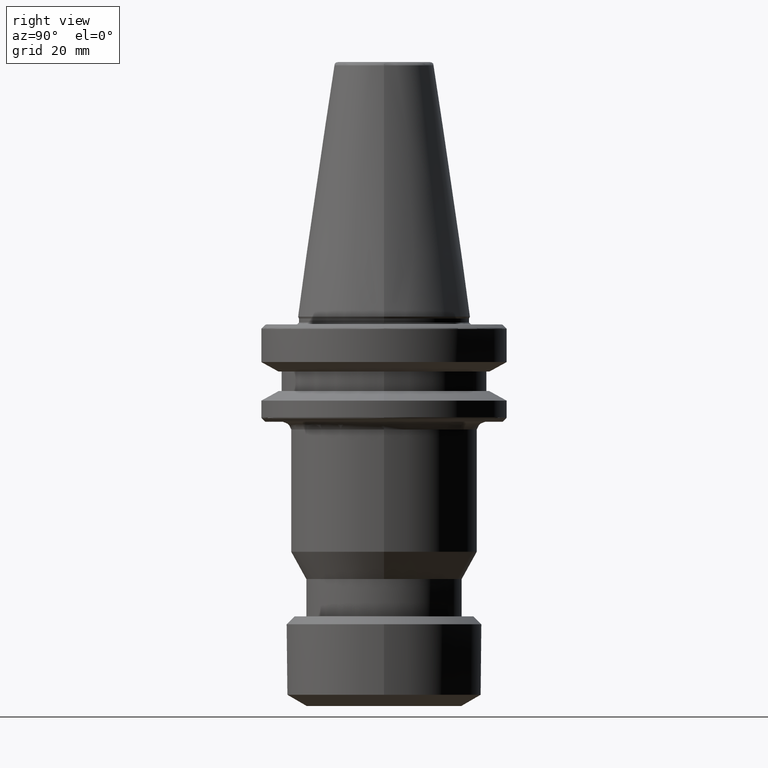
[diagram: clean part render]
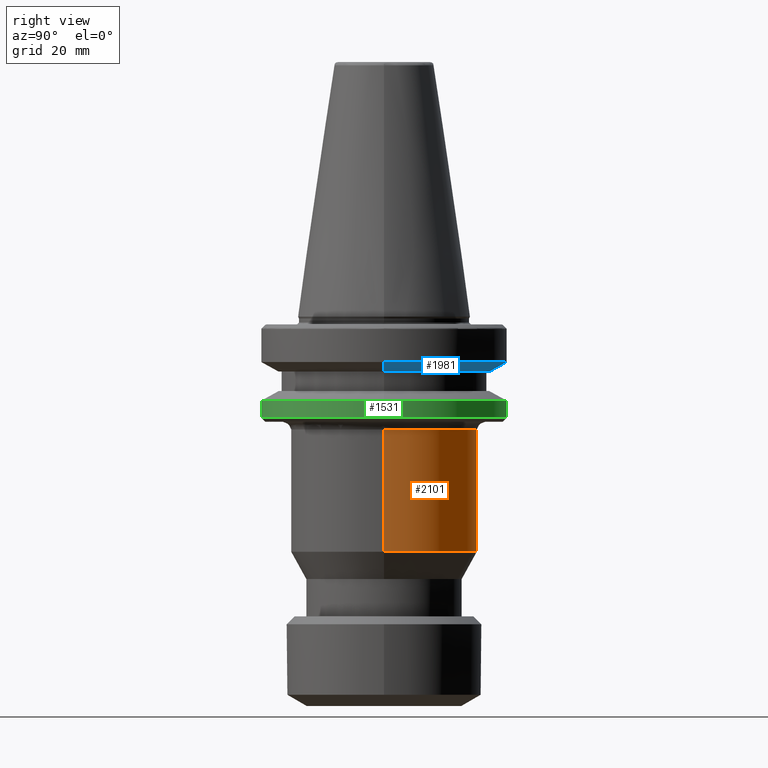
[diagram: same view with three faces highlighted in distinct colors, each labeled with its STEP entity id]
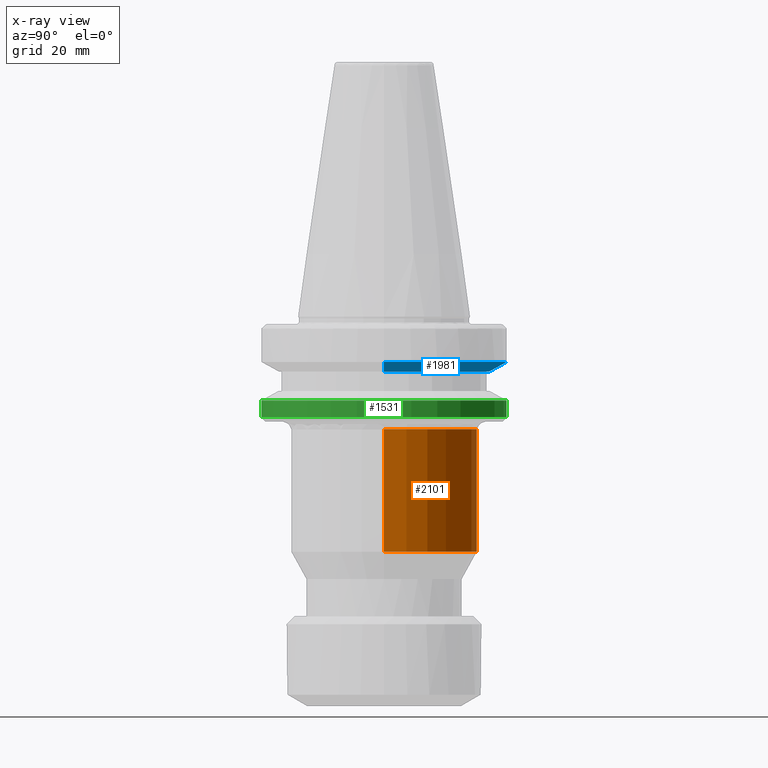
[diagram: x-ray of the same camera — body ghosted, the three highlighted faces saturated]
A machine part, right view with three faces highlighted in distinct colors.
The next image is the same camera in x-ray (body ghosted, the three faces saturated) — at least one of them is partly hidden behind the body in this view.
Their STEP definitions:

[orange] entity #2101 — the highlighted cylindrical surface (partial cylindrical patch) has radius 24 mm, axis along (0, -0, 1).
#54 = DIRECTION ( 'NONE',  ( 0.0000000000000000000, -0.0000000000000000000, 1.000000000000000000 ) ) ;
#74 = DIRECTION ( 'NONE',  ( 0.0000000000000000000, -0.0000000000000000000, 1.000000000000000000 ) ) ;
#81 = CARTESIAN_POINT ( 'NONE',  ( 24.00000000000000000, 0.0000000000000000000, -60.38519422900000000 ) ) ;
#160 = DIRECTION ( 'NONE',  ( 0.0000000000000000000, 0.0000000000000000000, 1.000000000000000000 ) ) ;
#191 = CARTESIAN_POINT ( 'NONE',  ( 24.00000000000000000, 0.0000000000000000000, -60.38519422900000000 ) ) ;
#304 = CARTESIAN_POINT ( 'NONE',  ( -23.99999999992037700, -7.383723426551921600E-009, -28.99999999972065400 ) ) ;
#306 = CARTESIAN_POINT ( 'NONE',  ( 23.99999999992037700, -2.155047082289592700E-009, -28.99999999972065400 ) ) ;
#582 = DIRECTION ( 'NONE',  ( 0.0000000000000000000, -0.0000000000000000000, 1.000000000000000000 ) ) ;
#611 = ORIENTED_EDGE ( 'NONE', *, *, #2212, .T. ) ;
#817 = CARTESIAN_POINT ( 'NONE',  ( 0.0000000000000000000, 0.0000000000000000000, -60.38519422899990700 ) ) ;
#938 = AXIS2_PLACEMENT_3D ( 'NONE', #1511, #54, #1110 ) ;
#992 = ORIENTED_EDGE ( 'NONE', *, *, #3037, .F. ) ;
#1110 = DIRECTION ( 'NONE',  ( 1.000000000000000000, 0.0000000000000000000, 0.0000000000000000000 ) ) ;
#1455 = LINE ( 'NONE', #3162, #3381 ) ;
#1479 = AXIS2_PLACEMENT_3D ( 'NONE', #817, #160, #1596 ) ;
#1491 = DIRECTION ( 'NONE',  ( 1.000000000000000000, 0.0000000000000000000, -1.445602896647339200E-016 ) ) ;
#1498 = DIRECTION ( 'NONE',  ( 0.0000000000000000000, 0.0000000000000000000, 1.000000000000000000 ) ) ;
#1500 = CARTESIAN_POINT ( 'NONE',  ( 0.0000000000000000000, 0.0000000000000000000, -28.99999999999999600 ) ) ;
#1511 = CARTESIAN_POINT ( 'NONE',  ( 0.0000000000000000000, 0.0000000000000000000, -60.38519422900000000 ) ) ;
#1540 = VECTOR ( 'NONE', #74, 1000.000000000000000 ) ;
#1596 = DIRECTION ( 'NONE',  ( 1.000000000000000000, 0.0000000000000000000, -4.047688110612550100E-015 ) ) ;
#1842 = EDGE_CURVE ( 'NONE', #2381, #2712, #1455, .T. ) ;
#1908 = VERTEX_POINT ( 'NONE', #306 ) ;
#2024 = CIRCLE ( 'NONE', #2394, 24.00000000000000000 ) ;
#2080 = CIRCLE ( 'NONE', #1479, 24.00000000000000000 ) ;
#2101 = ADVANCED_FACE ( 'NONE', ( #2814 ), #3059, .T. ) ;
#2149 = LINE ( 'NONE', #81, #1540 ) ;
#2171 = ORIENTED_EDGE ( 'NONE', *, *, #1842, .T. ) ;
#2212 = EDGE_CURVE ( 'NONE', #2775, #2381, #2080, .T. ) ;
#2381 = VERTEX_POINT ( 'NONE', #2499 ) ;
#2394 = AXIS2_PLACEMENT_3D ( 'NONE', #1500, #1498, #1491 ) ;
#2499 = CARTESIAN_POINT ( 'NONE',  ( -24.00000000000000000, 2.939152317953647900E-015, -60.38519422899990700 ) ) ;
#2712 = VERTEX_POINT ( 'NONE', #304 ) ;
#2757 = EDGE_LOOP ( 'NONE', ( #611, #2171, #992, #3374 ) ) ;
#2775 = VERTEX_POINT ( 'NONE', #191 ) ;
#2814 = FACE_OUTER_BOUND ( 'NONE', #2757, .T. ) ;
#2896 = EDGE_CURVE ( 'NONE', #2775, #1908, #2149, .T. ) ;
#3037 = EDGE_CURVE ( 'NONE', #1908, #2712, #2024, .T. ) ;
#3059 = CYLINDRICAL_SURFACE ( 'NONE', #938, 24.00000000000000000 ) ;
#3162 = CARTESIAN_POINT ( 'NONE',  ( -24.00000000000000000, 2.939152317953647900E-015, -60.38519422900000000 ) ) ;
#3374 = ORIENTED_EDGE ( 'NONE', *, *, #2896, .F. ) ;
#3381 = VECTOR ( 'NONE', #582, 1000.000000000000000 ) ;

[blue] entity #1981 — the highlighted conical surface has half-angle 60 deg.
#120 = CIRCLE ( 'NONE', #1080, 27.28235981882436100 ) ;
#201 = CIRCLE ( 'NONE', #225, 31.50000000000453000 ) ;
#225 = AXIS2_PLACEMENT_3D ( 'NONE', #260, #268, #247 ) ;
#226 = CARTESIAN_POINT ( 'NONE',  ( 27.28235981882436100, 0.0000000000000000000, -14.10000000000000100 ) ) ;
#247 = DIRECTION ( 'NONE',  ( -1.000000000000000000, 0.0000000000000000000, 0.0000000000000000000 ) ) ;
#260 = CARTESIAN_POINT ( 'NONE',  ( 0.0000000000000000000, 0.0000000000000000000, -11.66494430605063900 ) ) ;
#268 = DIRECTION ( 'NONE',  ( -0.0000000000000000000, -0.0000000000000000000, -1.000000000000000000 ) ) ;
#322 = CARTESIAN_POINT ( 'NONE',  ( 3.857637417314718000E-015, 31.50000000000453000, -11.66494430605063900 ) ) ;
#527 = DIRECTION ( 'NONE',  ( 0.0000000000000000000, 0.0000000000000000000, 1.000000000000000000 ) ) ;
#635 = CARTESIAN_POINT ( 'NONE',  ( 31.50000000000453000, 0.0000000000000000000, -11.66494430605063900 ) ) ;
#820 = EDGE_CURVE ( 'NONE', #2730, #3352, #1016, .T. ) ;
#821 = AXIS2_PLACEMENT_3D ( 'NONE', #3145, #527, #1591 ) ;
#920 = VECTOR ( 'NONE', #1832, 999.9999999999998900 ) ;
#1016 = LINE ( 'NONE', #635, #920 ) ;
#1080 = AXIS2_PLACEMENT_3D ( 'NONE', #1919, #1864, #1858 ) ;
#1320 = ORIENTED_EDGE ( 'NONE', *, *, #820, .F. ) ;
#1355 = CIRCLE ( 'NONE', #2951, 31.50000000000453000 ) ;
#1436 = DIRECTION ( 'NONE',  ( -1.000000000000000000, 0.0000000000000000000, 0.0000000000000000000 ) ) ;
#1437 = DIRECTION ( 'NONE',  ( -0.0000000000000000000, -0.0000000000000000000, -1.000000000000000000 ) ) ;
#1443 = CARTESIAN_POINT ( 'NONE',  ( 0.0000000000000000000, 0.0000000000000000000, -11.66494430605063900 ) ) ;
#1567 = EDGE_CURVE ( 'NONE', #1786, #2730, #120, .T. ) ;
#1591 = DIRECTION ( 'NONE',  ( 1.000000000000000000, 0.0000000000000000000, 0.0000000000000000000 ) ) ;
#1716 = EDGE_CURVE ( 'NONE', #1786, #1942, #2429, .T. ) ;
#1751 = CARTESIAN_POINT ( 'NONE',  ( -27.28235981882436100, 3.599381439922839400E-015, -14.10000000000000100 ) ) ;
#1780 = DIRECTION ( 'NONE',  ( -0.8660254037844380400, 1.060575238724906200E-016, 0.5000000000000012200 ) ) ;
#1783 = CARTESIAN_POINT ( 'NONE',  ( -31.50000000000453000, 3.857637417314717300E-015, -11.66494430605063900 ) ) ;
#1786 = VERTEX_POINT ( 'NONE', #1751 ) ;
#1832 = DIRECTION ( 'NONE',  ( 0.8660254037844380400, 0.0000000000000000000, 0.5000000000000012200 ) ) ;
#1858 = DIRECTION ( 'NONE',  ( -1.000000000000000000, 0.0000000000000000000, 0.0000000000000000000 ) ) ;
#1864 = DIRECTION ( 'NONE',  ( -0.0000000000000000000, -0.0000000000000000000, -1.000000000000000000 ) ) ;
#1919 = CARTESIAN_POINT ( 'NONE',  ( 0.0000000000000000000, 0.0000000000000000000, -14.10000000000000100 ) ) ;
#1942 = VERTEX_POINT ( 'NONE', #3202 ) ;
#1981 = ADVANCED_FACE ( 'NONE', ( #2634 ), #2262, .T. ) ;
#2005 = VERTEX_POINT ( 'NONE', #322 ) ;
#2167 = ORIENTED_EDGE ( 'NONE', *, *, #3097, .T. ) ;
#2262 = CONICAL_SURFACE ( 'NONE', #821, 31.50000000000453000, 1.047197551196596300 ) ;
#2350 = VECTOR ( 'NONE', #1780, 999.9999999999998900 ) ;
#2429 = LINE ( 'NONE', #1783, #2350 ) ;
#2522 = ORIENTED_EDGE ( 'NONE', *, *, #1567, .F. ) ;
#2573 = EDGE_LOOP ( 'NONE', ( #2522, #2672, #2645, #2167, #1320 ) ) ;
#2634 = FACE_OUTER_BOUND ( 'NONE', #2573, .T. ) ;
#2645 = ORIENTED_EDGE ( 'NONE', *, *, #2687, .T. ) ;
#2672 = ORIENTED_EDGE ( 'NONE', *, *, #1716, .T. ) ;
#2687 = EDGE_CURVE ( 'NONE', #1942, #2005, #201, .T. ) ;
#2730 = VERTEX_POINT ( 'NONE', #226 ) ;
#2951 = AXIS2_PLACEMENT_3D ( 'NONE', #1443, #1437, #1436 ) ;
#2998 = CARTESIAN_POINT ( 'NONE',  ( 31.50000000000453000, 0.0000000000000000000, -11.66494430605063900 ) ) ;
#3097 = EDGE_CURVE ( 'NONE', #2005, #3352, #1355, .T. ) ;
#3145 = CARTESIAN_POINT ( 'NONE',  ( 0.0000000000000000000, 0.0000000000000000000, -11.66494430605063900 ) ) ;
#3202 = CARTESIAN_POINT ( 'NONE',  ( -31.50000000000453000, 3.857637417314717300E-015, -11.66494430605063900 ) ) ;
#3352 = VERTEX_POINT ( 'NONE', #2998 ) ;

[green] entity #1531 — the highlighted cylindrical surface (partial cylindrical patch) has radius 31.5 mm, axis along (0, -0, 1).
#31 = DIRECTION ( 'NONE',  ( -0.0000000000000000000, 1.652117596172950100E-016, -1.000000000000000000 ) ) ;
#87 = CYLINDRICAL_SURFACE ( 'NONE', #890, 31.50000000000000000 ) ;
#119 = DIRECTION ( 'NONE',  ( 0.0000000000000000000, -5.507058653894625200E-017, 1.000000000000000000 ) ) ;
#128 = AXIS2_PLACEMENT_3D ( 'NONE', #234, #31, #2558 ) ;
#130 = FACE_OUTER_BOUND ( 'NONE', #2131, .T. ) ;
#137 = CARTESIAN_POINT ( 'NONE',  ( 3.857637417314162700E-015, 31.50000000000000000, -25.83431457497092200 ) ) ;
#234 = CARTESIAN_POINT ( 'NONE',  ( 0.0000000000000000000, 0.0000000000000000000, -25.83431457497091400 ) ) ;
#255 = CARTESIAN_POINT ( 'NONE',  ( 0.0000000000000000000, -31.50000000000000000, -25.83431457500000100 ) ) ;
#303 = EDGE_CURVE ( 'NONE', #2783, #3397, #1550, .T. ) ;
#339 = CIRCLE ( 'NONE', #128, 31.50000000001812600 ) ;
#525 = DIRECTION ( 'NONE',  ( 0.0000000000000000000, -5.507058653894625200E-017, 1.000000000000000000 ) ) ;
#539 = CARTESIAN_POINT ( 'NONE',  ( 0.0000000000000000000, 0.0000000000000000000, -25.83431457497091400 ) ) ;
#558 = CIRCLE ( 'NONE', #761, 31.50000000021636700 ) ;
#583 = EDGE_CURVE ( 'NONE', #2783, #2079, #1217, .T. ) ;
#761 = AXIS2_PLACEMENT_3D ( 'NONE', #1172, #1057, #967 ) ;
#890 = AXIS2_PLACEMENT_3D ( 'NONE', #2552, #2475, #1265 ) ;
#953 = CIRCLE ( 'NONE', #2124, 31.50000000021636700 ) ;
#967 = DIRECTION ( 'NONE',  ( -1.000000000000000000, 0.0000000000000000000, 0.0000000000000000000 ) ) ;
#1057 = DIRECTION ( 'NONE',  ( -0.0000000000000000000, -0.0000000000000000000, -1.000000000000000000 ) ) ;
#1117 = ORIENTED_EDGE ( 'NONE', *, *, #303, .T. ) ;
#1170 = VECTOR ( 'NONE', #119, 1000.000000000000000 ) ;
#1172 = CARTESIAN_POINT ( 'NONE',  ( 0.0000000000000000000, 0.0000000000000000000, -21.56672864415998300 ) ) ;
#1194 = EDGE_CURVE ( 'NONE', #1890, #1371, #558, .T. ) ;
#1217 = CIRCLE ( 'NONE', #1945, 31.50000000001812600 ) ;
#1265 = DIRECTION ( 'NONE',  ( 0.0000000000000000000, -1.000000000000000000, 0.0000000000000000000 ) ) ;
#1371 = VERTEX_POINT ( 'NONE', #1473 ) ;
#1421 = EDGE_CURVE ( 'NONE', #2079, #3083, #339, .T. ) ;
#1473 = CARTESIAN_POINT ( 'NONE',  ( 0.0000000000000000000, -31.50000000021636700, -21.56672864415998300 ) ) ;
#1477 = VECTOR ( 'NONE', #525, 1000.000000000000000 ) ;
#1531 = ADVANCED_FACE ( 'NONE', ( #130 ), #87, .T. ) ;
#1550 = LINE ( 'NONE', #1593, #1477 ) ;
#1568 = CARTESIAN_POINT ( 'NONE',  ( 0.0000000000000000000, -31.50000000000000000, -25.83431457497092200 ) ) ;
#1574 = DIRECTION ( 'NONE',  ( -0.0000000000000000000, -1.652117596172950100E-016, -1.000000000000000000 ) ) ;
#1593 = CARTESIAN_POINT ( 'NONE',  ( 3.857637417314162700E-015, 31.50000000000000000, -25.83431457500000100 ) ) ;
#1722 = DIRECTION ( 'NONE',  ( -0.0000000000000000000, -0.0000000000000000000, -1.000000000000000000 ) ) ;
#1726 = CARTESIAN_POINT ( 'NONE',  ( 0.0000000000000000000, 0.0000000000000000000, -21.56672864415998300 ) ) ;
#1794 = CARTESIAN_POINT ( 'NONE',  ( 3.857637417340660500E-015, 31.50000000021636700, -21.56672864415998300 ) ) ;
#1812 = EDGE_CURVE ( 'NONE', #3397, #1890, #953, .T. ) ;
#1861 = ORIENTED_EDGE ( 'NONE', *, *, #1421, .F. ) ;
#1890 = VERTEX_POINT ( 'NONE', #3453 ) ;
#1945 = AXIS2_PLACEMENT_3D ( 'NONE', #539, #1574, #2711 ) ;
#2079 = VERTEX_POINT ( 'NONE', #3196 ) ;
#2124 = AXIS2_PLACEMENT_3D ( 'NONE', #1726, #1722, #2822 ) ;
#2131 = EDGE_LOOP ( 'NONE', ( #2276, #1117, #2215, #2146, #2868, #1861 ) ) ;
#2146 = ORIENTED_EDGE ( 'NONE', *, *, #1194, .T. ) ;
#2215 = ORIENTED_EDGE ( 'NONE', *, *, #1812, .T. ) ;
#2276 = ORIENTED_EDGE ( 'NONE', *, *, #583, .F. ) ;
#2475 = DIRECTION ( 'NONE',  ( 0.0000000000000000000, -5.507058653894625200E-017, 1.000000000000000000 ) ) ;
#2552 = CARTESIAN_POINT ( 'NONE',  ( 0.0000000000000000000, 0.0000000000000000000, -25.83431457500000100 ) ) ;
#2558 = DIRECTION ( 'NONE',  ( 0.0000000000000000000, 1.000000000000000000, 2.202823461556582700E-016 ) ) ;
#2711 = DIRECTION ( 'NONE',  ( 0.0000000000000000000, 1.000000000000000000, -2.202823461556582700E-016 ) ) ;
#2783 = VERTEX_POINT ( 'NONE', #137 ) ;
#2786 = EDGE_CURVE ( 'NONE', #3083, #1371, #2962, .T. ) ;
#2822 = DIRECTION ( 'NONE',  ( -1.000000000000000000, 0.0000000000000000000, 0.0000000000000000000 ) ) ;
#2868 = ORIENTED_EDGE ( 'NONE', *, *, #2786, .F. ) ;
#2962 = LINE ( 'NONE', #255, #1170 ) ;
#3083 = VERTEX_POINT ( 'NONE', #1568 ) ;
#3196 = CARTESIAN_POINT ( 'NONE',  ( 31.50000000001359300, -1.414249647752545200E-009, -25.83431457497249900 ) ) ;
#3397 = VERTEX_POINT ( 'NONE', #1794 ) ;
#3453 = CARTESIAN_POINT ( 'NONE',  ( 31.50000000021636700, 3.857637417340660500E-015, -21.56672864415998300 ) ) ;